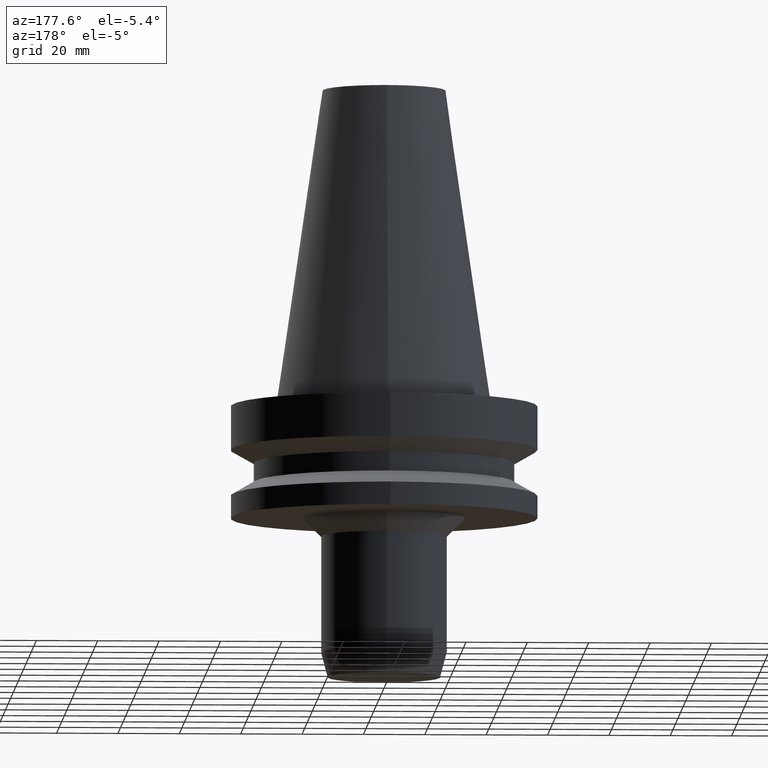
[diagram: clean part render]
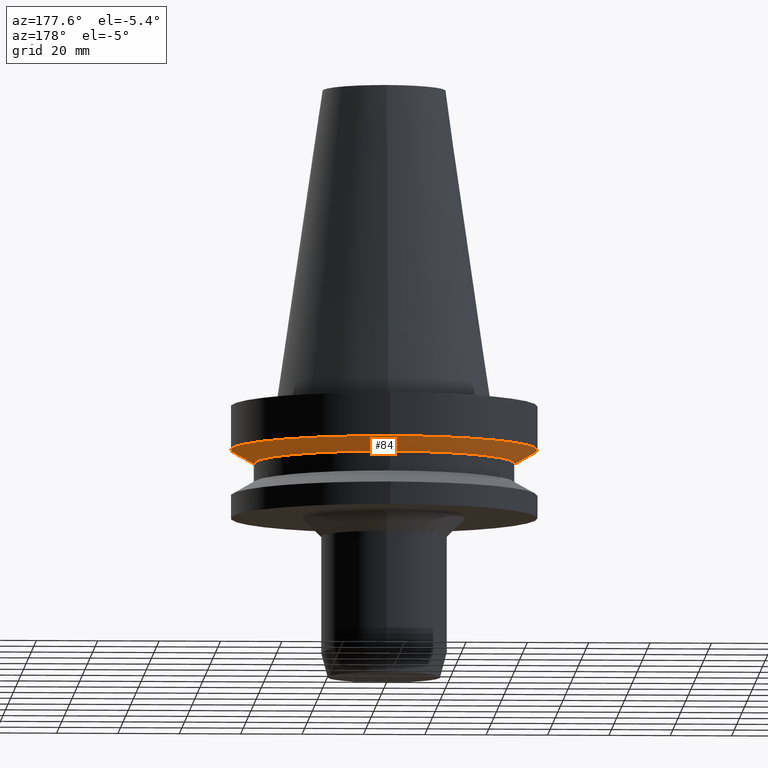
[diagram: same view with one face highlighted and labeled with its STEP entity id]
A machine part, auxiliary view. The second image highlights one B-rep face of the part: STEP entity #84.
In plain terms, the highlighted conical surface has half-angle 60 deg.
Its self-contained STEP definition (entity closure, byte-faithful):
#84=ADVANCED_FACE('',(#115,#116),#117,.T.);
#115=FACE_BOUND('',#155,.T.);
#116=FACE_BOUND('',#156,.T.);
#117=CONICAL_SURFACE('',#157,46.25,1.04719755108882);
#155=EDGE_LOOP('',(#213));
#156=EDGE_LOOP('',(#214));
#157=AXIS2_PLACEMENT_3D('',#215,#216,#217);
#213=ORIENTED_EDGE('',*,*,#247,.F.);
#214=ORIENTED_EDGE('',*,*,#246,.T.);
#215=CARTESIAN_POINT('',(1.09391964220428E-015,2.18783928440857E-015,-17.86506351));
#216=DIRECTION('',(-6.12323399573676E-017,-1.22464679914735E-016,1.0));
#217=DIRECTION('',(-1.23259516440783E-032,1.0,1.22464679914735E-016));
#246=EDGE_CURVE('',#267,#267,#268,.T.);
#247=EDGE_CURVE('',#269,#269,#270,.T.);
#267=VERTEX_POINT('',#293);
#268=CIRCLE('',#294,42.5);
#269=VERTEX_POINT('',#295);
#270=CIRCLE('',#296,50.0);
#293=CARTESIAN_POINT('',(1.2264915470779E-015,42.5,-20.03012702));
#294=AXIS2_PLACEMENT_3D('',#327,#328,#329);
#295=CARTESIAN_POINT('',(9.61347737330672E-016,50.0,-15.7));
#296=AXIS2_PLACEMENT_3D('',#330,#331,#332);
#327=CARTESIAN_POINT('',(1.2264915470779E-015,2.45298309415579E-015,-20.03012702));
#328=DIRECTION('',(-6.12323399573677E-017,-1.22464679914735E-016,1.0));
#329=DIRECTION('',(-1.23259516440783E-032,1.0,1.22464679914735E-016));
#330=CARTESIAN_POINT('',(9.61347737330673E-016,1.92269547466134E-015,-15.7));
#331=DIRECTION('',(-6.12323399573677E-017,-1.22464679914735E-016,1.0));
#332=DIRECTION('',(-1.23259516440783E-032,1.0,1.22464679914735E-016));